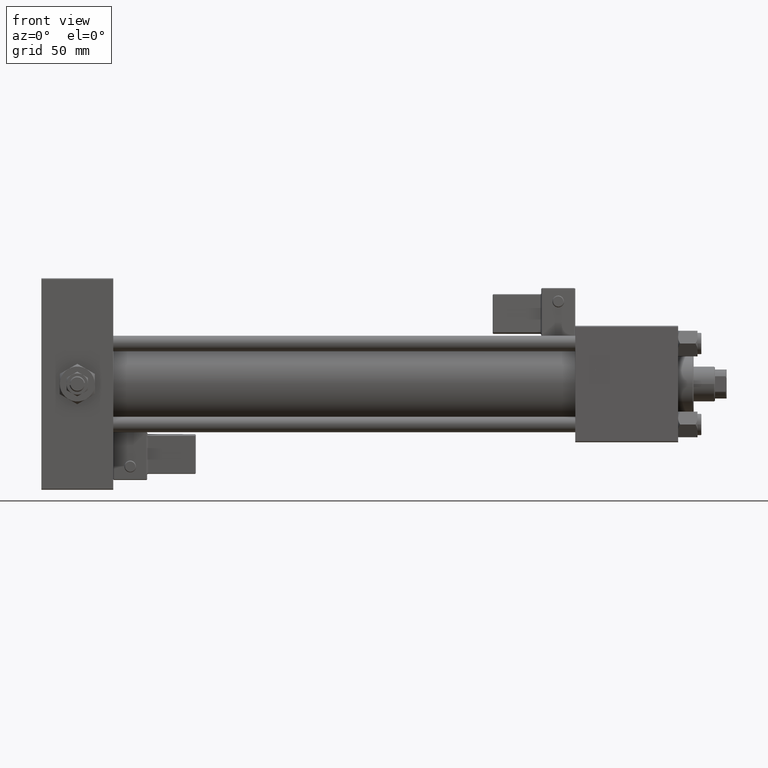
[diagram: clean part render]
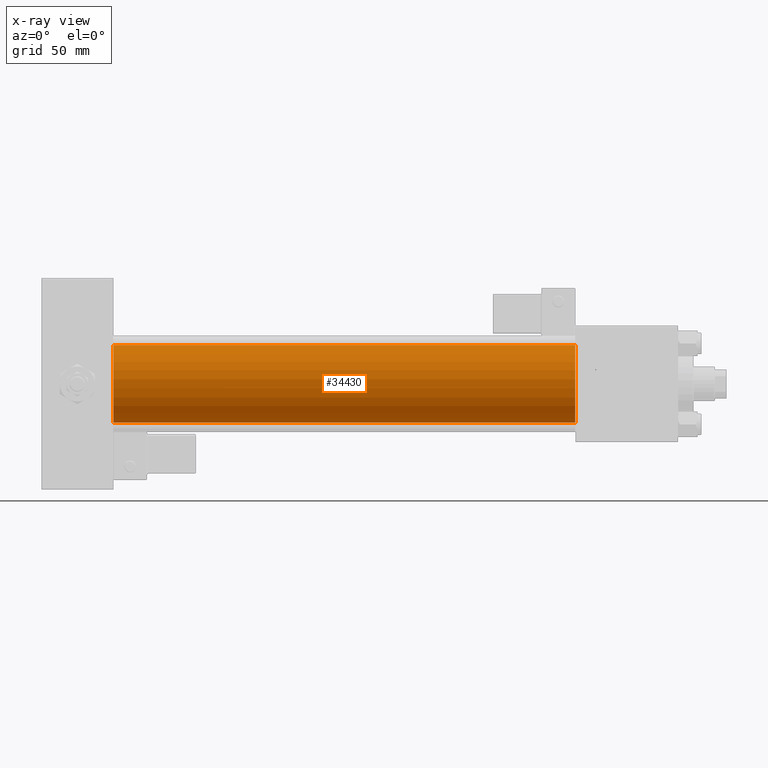
[diagram: x-ray — body ghosted, one internal face saturated and labeled with its STEP entity id]
A machine part, front view, then the same camera in x-ray: the body is ghosted and one INTERNAL B-rep face — a face not visible from any outside direction — is saturated and labeled: STEP entity #34430.
In plain terms, the highlighted cylindrical surface (partial cylindrical patch) has radius 20 mm, axis along (-1, -0, -0).
Its self-contained STEP definition (entity closure, byte-faithful):
#700 = DIRECTION ( 'NONE',  ( -1.000000000000000000, -0.000000000000000000, -0.000000000000000000 ) ) ;
#1354 = DIRECTION ( 'NONE',  ( -1.000000000000000000, -0.000000000000000000, -0.000000000000000000 ) ) ;
#2085 = ORIENTED_EDGE ( 'NONE', *, *, #29978, .T. ) ;
#2158 = EDGE_LOOP ( 'NONE', ( #51094, #2085, #40213, #42549 ) ) ;
#3631 = CARTESIAN_POINT ( 'NONE',  ( 274.9999999999999432, -1.527916156705042519E-16, -20.00000000000000000 ) ) ;
#7504 = CARTESIAN_POINT ( 'NONE',  ( 274.9999999999999432, -2.602085213965210642E-15, 0.000000000000000000 ) ) ;
#7803 = AXIS2_PLACEMENT_3D ( 'NONE', #7504, #49808, #53372 ) ;
#8151 = CARTESIAN_POINT ( 'NONE',  ( 274.9999999999999432, -2.602085213965210642E-15, 20.00000000000000000 ) ) ;
#9546 = LINE ( 'NONE', #27319, #9729 ) ;
#9729 = VECTOR ( 'NONE', #1354, 1000.000000000000000 ) ;
#9928 = CARTESIAN_POINT ( 'NONE',  ( 37.00000000000000000, -2.602085213965210642E-15, 0.000000000000000000 ) ) ;
#14101 = DIRECTION ( 'NONE',  ( -1.000000000000000000, -0.000000000000000000, -0.000000000000000000 ) ) ;
#16502 = VERTEX_POINT ( 'NONE', #27584 ) ;
#17867 = DIRECTION ( 'NONE',  ( 0.000000000000000000, 0.000000000000000000, -1.000000000000000000 ) ) ;
#21023 = CARTESIAN_POINT ( 'NONE',  ( 37.00000000000000000, -2.602085213965210642E-15, 20.00000000000000000 ) ) ;
#22040 = CYLINDRICAL_SURFACE ( 'NONE', #32900, 20.00000000000000000 ) ;
#24071 = EDGE_CURVE ( 'NONE', #16502, #52887, #43536, .T. ) ;
#25518 = VERTEX_POINT ( 'NONE', #21023 ) ;
#27319 = CARTESIAN_POINT ( 'NONE',  ( 274.9999999999999432, -1.527916156705042519E-16, -20.00000000000000000 ) ) ;
#27584 = CARTESIAN_POINT ( 'NONE',  ( 274.9999999999999432, -2.602085213965210642E-15, 20.00000000000000000 ) ) ;
#29978 = EDGE_CURVE ( 'NONE', #52887, #35829, #9546, .T. ) ;
#30153 = EDGE_CURVE ( 'NONE', #16502, #25518, #53757, .T. ) ;
#30699 = VECTOR ( 'NONE', #700, 1000.000000000000000 ) ;
#32900 = AXIS2_PLACEMENT_3D ( 'NONE', #47402, #14101, #50959 ) ;
#34430 = ADVANCED_FACE ( 'NONE', ( #43589 ), #22040, .F. ) ;
#35829 = VERTEX_POINT ( 'NONE', #38943 ) ;
#35845 = CIRCLE ( 'NONE', #51468, 20.00000000000000000 ) ;
#38943 = CARTESIAN_POINT ( 'NONE',  ( 37.00000000000000000, -1.527916156705042519E-16, -20.00000000000000000 ) ) ;
#40213 = ORIENTED_EDGE ( 'NONE', *, *, #46955, .F. ) ;
#42549 = ORIENTED_EDGE ( 'NONE', *, *, #30153, .F. ) ;
#43257 = DIRECTION ( 'NONE',  ( 1.000000000000000000, 0.000000000000000000, 0.000000000000000000 ) ) ;
#43536 = CIRCLE ( 'NONE', #7803, 20.00000000000000000 ) ;
#43589 = FACE_OUTER_BOUND ( 'NONE', #2158, .T. ) ;
#46955 = EDGE_CURVE ( 'NONE', #25518, #35829, #35845, .T. ) ;
#47402 = CARTESIAN_POINT ( 'NONE',  ( 274.9999999999999432, -2.602085213965210642E-15, 0.000000000000000000 ) ) ;
#49808 = DIRECTION ( 'NONE',  ( 1.000000000000000000, 0.000000000000000000, 0.000000000000000000 ) ) ;
#50959 = DIRECTION ( 'NONE',  ( 0.000000000000000000, 0.000000000000000000, 1.000000000000000000 ) ) ;
#51094 = ORIENTED_EDGE ( 'NONE', *, *, #24071, .T. ) ;
#51468 = AXIS2_PLACEMENT_3D ( 'NONE', #9928, #43257, #17867 ) ;
#52887 = VERTEX_POINT ( 'NONE', #3631 ) ;
#53372 = DIRECTION ( 'NONE',  ( 0.000000000000000000, 0.000000000000000000, -1.000000000000000000 ) ) ;
#53757 = LINE ( 'NONE', #8151, #30699 ) ;